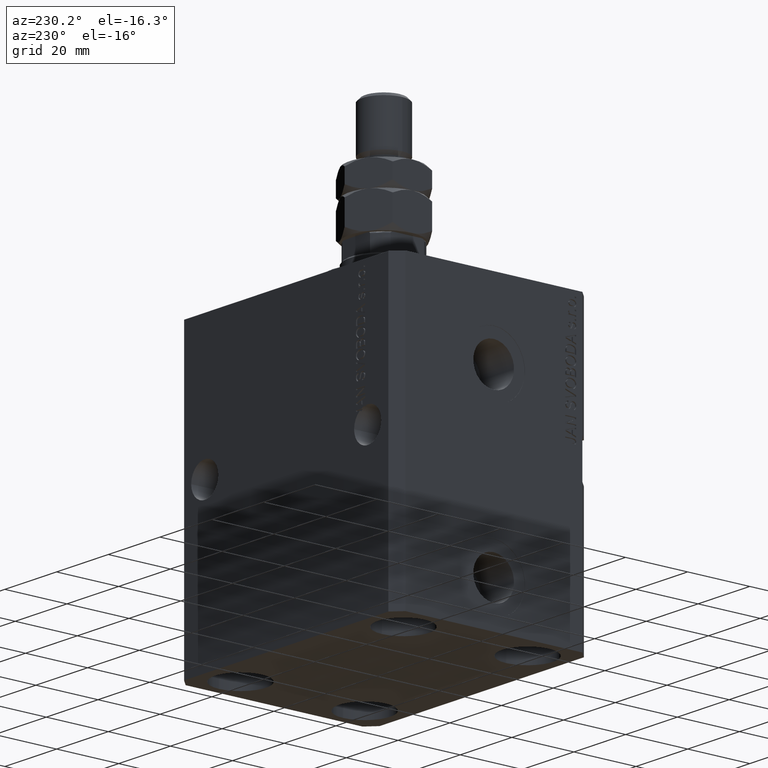
[diagram: clean part render]
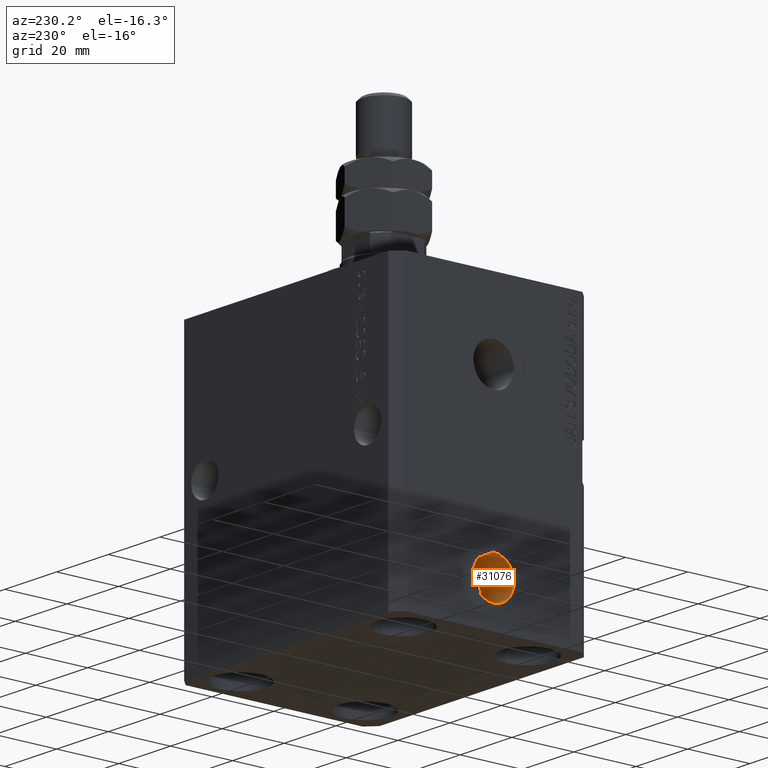
[diagram: same view with one face highlighted and labeled with its STEP entity id]
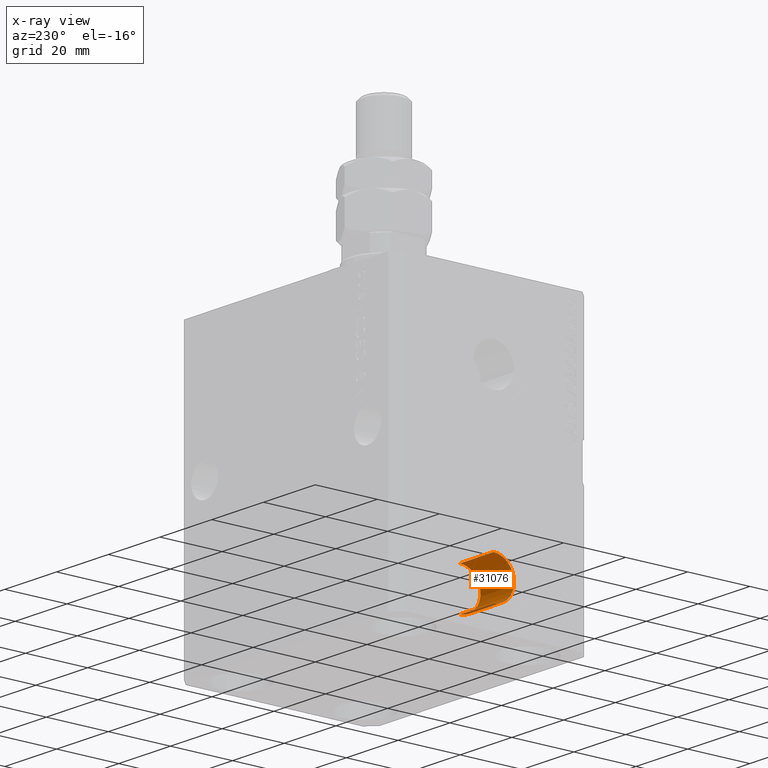
[diagram: x-ray of the same camera — body ghosted, the highlighted face saturated]
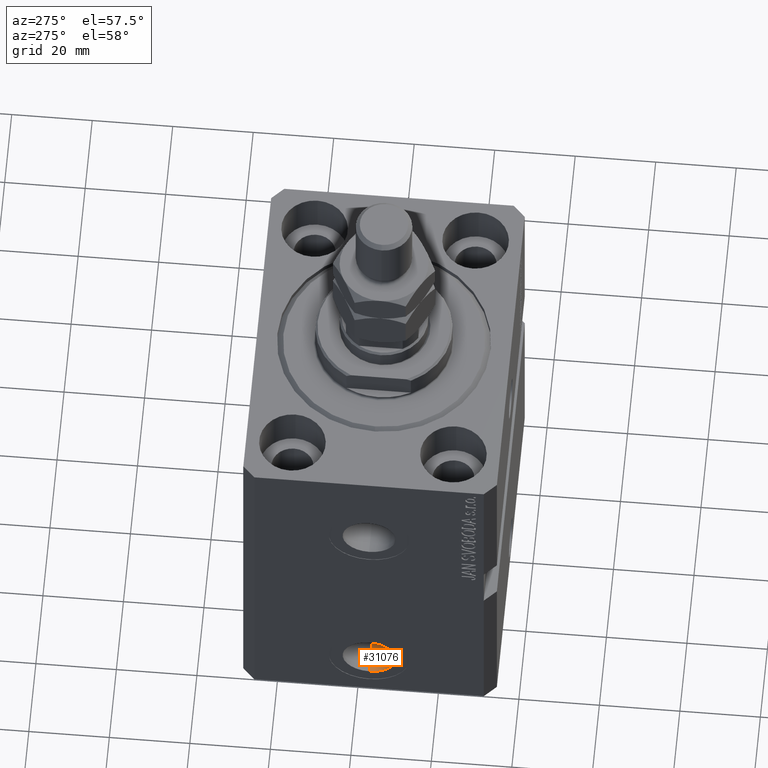
[diagram: same view with one face highlighted and labeled with its STEP entity id]
A machine part, auxiliary view. The second image highlights one B-rep face of the part: STEP entity #31076.
The next image is the same camera in x-ray: the body ghosted, the highlighted face saturated — about 0% of this face is hidden behind the body in this view.
A second angle (auxiliary view) of the same face is appended — the face is thin or edge-on in the first view.
In plain terms, the highlighted cylindrical surface (edge-blend (fillet) strip) has radius 6.58 mm, axis along (-1, -0, -0).
Its self-contained STEP definition (entity closure, byte-faithful):
#2278 = CARTESIAN_POINT ( 'NONE',  ( -42.39999999999999858, -9.674709713264090904E-15, -72.42000000000000171 ) ) ;
#2451 = AXIS2_PLACEMENT_3D ( 'NONE', #28385, #32128, #35412 ) ;
#3921 = ORIENTED_EDGE ( 'NONE', *, *, #11180, .F. ) ;
#5503 = DIRECTION ( 'NONE',  ( -1.000000000000000000, 0.000000000000000000, 0.000000000000000000 ) ) ;
#5604 = CARTESIAN_POINT ( 'NONE',  ( -29.40000000000000213, -9.674709713264090904E-15, -72.42000000000000171 ) ) ;
#5774 = EDGE_LOOP ( 'NONE', ( #3921, #22674, #7278, #35803 ) ) ;
#6173 = EDGE_CURVE ( 'NONE', #7531, #41496, #42192, .T. ) ;
#7244 = DIRECTION ( 'NONE',  ( -1.000000000000000000, -0.000000000000000000, -0.000000000000000000 ) ) ;
#7278 = ORIENTED_EDGE ( 'NONE', *, *, #22203, .T. ) ;
#7531 = VERTEX_POINT ( 'NONE', #28564 ) ;
#7995 = EDGE_CURVE ( 'NONE', #45559, #36354, #32725, .T. ) ;
#8297 = AXIS2_PLACEMENT_3D ( 'NONE', #15739, #16191, #44566 ) ;
#10345 = CYLINDRICAL_SURFACE ( 'NONE', #2451, 6.580000000000002736 ) ;
#11180 = EDGE_CURVE ( 'NONE', #7531, #45559, #31098, .T. ) ;
#11394 = CARTESIAN_POINT ( 'NONE',  ( -29.40000000000000213, -9.674709713264090904E-15, -72.42000000000000171 ) ) ;
#11651 = AXIS2_PLACEMENT_3D ( 'NONE', #37612, #5503, #16292 ) ;
#14822 = VECTOR ( 'NONE', #7244, 1000.000000000000000 ) ;
#15241 = CARTESIAN_POINT ( 'NONE',  ( -42.39999999999999858, -8.868892119425131862E-15, -85.57999999999999829 ) ) ;
#15739 = CARTESIAN_POINT ( 'NONE',  ( -42.39999999999999858, -9.674709713264090904E-15, -79.00000000000000000 ) ) ;
#16191 = DIRECTION ( 'NONE',  ( -1.000000000000000000, 0.000000000000000000, 0.000000000000000000 ) ) ;
#16292 = DIRECTION ( 'NONE',  ( 0.000000000000000000, 0.000000000000000000, 1.000000000000000000 ) ) ;
#18310 = FACE_OUTER_BOUND ( 'NONE', #5774, .T. ) ;
#22203 = EDGE_CURVE ( 'NONE', #41496, #36354, #40491, .T. ) ;
#22674 = ORIENTED_EDGE ( 'NONE', *, *, #6173, .T. ) ;
#28385 = CARTESIAN_POINT ( 'NONE',  ( -29.40000000000000213, -9.674709713264090904E-15, -79.00000000000000000 ) ) ;
#28564 = CARTESIAN_POINT ( 'NONE',  ( -29.40000000000000213, -8.868892119425131862E-15, -85.57999999999999829 ) ) ;
#29442 = DIRECTION ( 'NONE',  ( -1.000000000000000000, -0.000000000000000000, -0.000000000000000000 ) ) ;
#31076 = ADVANCED_FACE ( 'NONE', ( #18310 ), #10345, .F. ) ;
#31098 = CIRCLE ( 'NONE', #11651, 6.580000000000002736 ) ;
#32128 = DIRECTION ( 'NONE',  ( -1.000000000000000000, -0.000000000000000000, -0.000000000000000000 ) ) ;
#32725 = LINE ( 'NONE', #11394, #39424 ) ;
#35412 = DIRECTION ( 'NONE',  ( 0.000000000000000000, 0.000000000000000000, 1.000000000000000000 ) ) ;
#35803 = ORIENTED_EDGE ( 'NONE', *, *, #7995, .F. ) ;
#36354 = VERTEX_POINT ( 'NONE', #2278 ) ;
#37612 = CARTESIAN_POINT ( 'NONE',  ( -29.40000000000000213, -9.674709713264090904E-15, -79.00000000000000000 ) ) ;
#39362 = CARTESIAN_POINT ( 'NONE',  ( -29.40000000000000213, -8.868892119425131862E-15, -85.57999999999999829 ) ) ;
#39424 = VECTOR ( 'NONE', #29442, 1000.000000000000000 ) ;
#40491 = CIRCLE ( 'NONE', #8297, 6.580000000000002736 ) ;
#41496 = VERTEX_POINT ( 'NONE', #15241 ) ;
#42192 = LINE ( 'NONE', #39362, #14822 ) ;
#44566 = DIRECTION ( 'NONE',  ( 0.000000000000000000, 0.000000000000000000, 1.000000000000000000 ) ) ;
#45559 = VERTEX_POINT ( 'NONE', #5604 ) ;